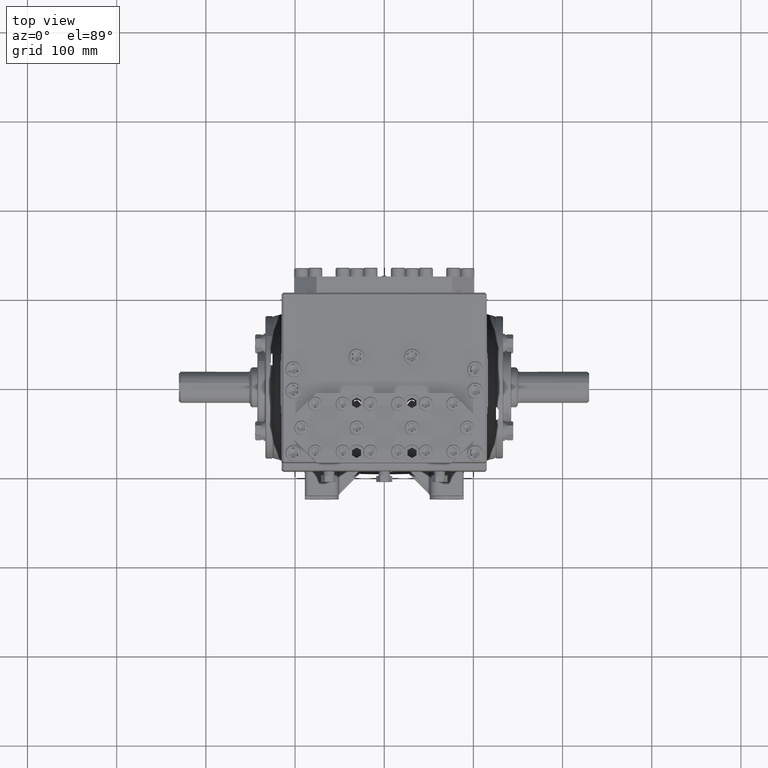
[diagram: clean part render]
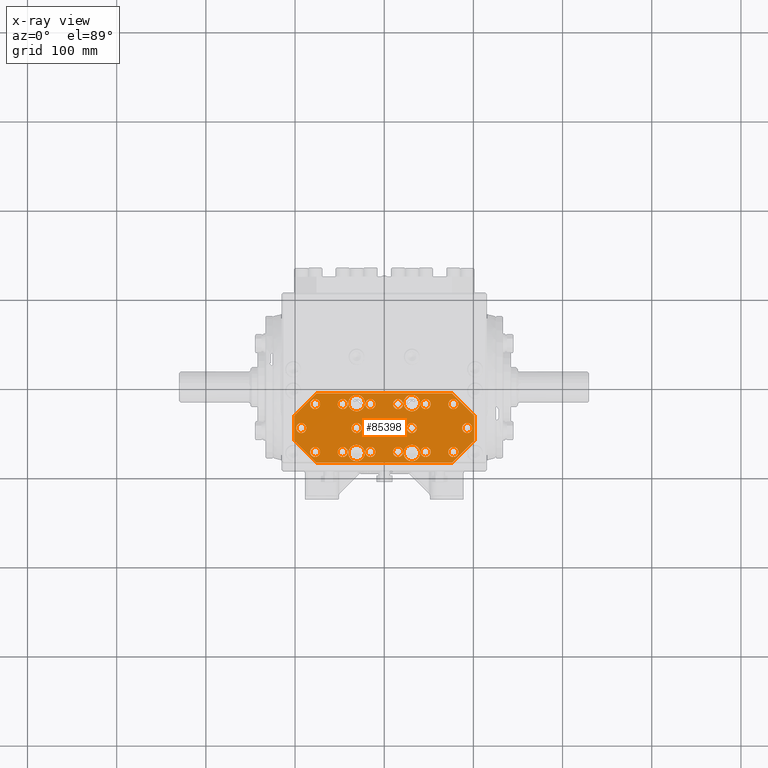
[diagram: x-ray — body ghosted, one internal face saturated and labeled with its STEP entity id]
A machine part, top view, then the same camera in x-ray: the body is ghosted and one INTERNAL B-rep face — a face not visible from any outside direction — is saturated and labeled: STEP entity #85398.
In plain terms, the highlighted planar face has unit normal (-0, -0, 1).
Its self-contained STEP definition (entity closure, byte-faithful):
#291 = EDGE_LOOP ( 'NONE', ( #98568, #105660 ) ) ;
#318 = EDGE_CURVE ( 'NONE', #18968, #102090, #107049, .T. ) ;
#652 = CARTESIAN_POINT ( 'NONE',  ( 1.830708661417328020, -1.069024113491427785, 18.66141732283473331 ) ) ;
#1215 = CIRCLE ( 'NONE', #67926, 0.2204724409448814426 ) ;
#1227 = VERTEX_POINT ( 'NONE', #110384 ) ;
#1425 = CARTESIAN_POINT ( 'NONE',  ( 3.661417322834645827, -2.125984251968503269, 18.66141732283473331 ) ) ;
#1813 = AXIS2_PLACEMENT_3D ( 'NONE', #63108, #99520, #17731 ) ;
#2269 = CARTESIAN_POINT ( 'NONE',  ( 3.051181102362210851, -3.182944390445579419, 18.66141732283473331 ) ) ;
#2303 = DIRECTION ( 'NONE',  ( -1.000000000000000000, -6.195440985631466164E-16, 0.0000000000000000000 ) ) ;
#2445 = FACE_BOUND ( 'NONE', #63827, .T. ) ;
#2452 = ORIENTED_EDGE ( 'NONE', *, *, #102271, .F. ) ;
#2889 = AXIS2_PLACEMENT_3D ( 'NONE', #41051, #79063, #115449 ) ;
#2949 = CARTESIAN_POINT ( 'NONE',  ( -2.830708661417322691, -3.182944390445580751, 18.66141732283473331 ) ) ;
#3020 = CARTESIAN_POINT ( 'NONE',  ( 3.976377952755905554, -0.5905511811023647084, 18.66141732283464805 ) ) ;
#3039 = VERTEX_POINT ( 'NONE', #46148 ) ;
#3328 = CARTESIAN_POINT ( 'NONE',  ( -2.051181102362202413, -1.069024113491437555, 18.66141732283473331 ) ) ;
#3364 = ORIENTED_EDGE ( 'NONE', *, *, #60710, .F. ) ;
#3597 = CARTESIAN_POINT ( 'NONE',  ( -1.440944881889762996, -2.125984251968504601, 18.66141732283473331 ) ) ;
#3681 = ORIENTED_EDGE ( 'NONE', *, *, #68378, .F. ) ;
#3821 = EDGE_LOOP ( 'NONE', ( #102589, #49507 ) ) ;
#4103 = EDGE_CURVE ( 'NONE', #9212, #67387, #11942, .T. ) ;
#4856 = CIRCLE ( 'NONE', #71607, 0.2204724409448814426 ) ;
#5138 = CARTESIAN_POINT ( 'NONE',  ( 0.6102362204724406380, -1.069024113491428007, 18.66141732283473331 ) ) ;
#5158 = ORIENTED_EDGE ( 'NONE', *, *, #76025, .F. ) ;
#5298 = CARTESIAN_POINT ( 'NONE',  ( 3.661417322834645827, -2.125984251968503269, 18.66141732283473331 ) ) ;
#5740 = DIRECTION ( 'NONE',  ( -1.000000000000000000, 0.0000000000000000000, 0.0000000000000000000 ) ) ;
#5843 = CARTESIAN_POINT ( 'NONE',  ( -1.830708661417316030, -3.182944390445580751, 18.66141732283473331 ) ) ;
#5940 = CARTESIAN_POINT ( 'NONE',  ( -3.271653543307085688, -3.182944390445580751, 18.66141732283473331 ) ) ;
#5972 = AXIS2_PLACEMENT_3D ( 'NONE', #88736, #6946, #43382 ) ;
#6135 = EDGE_LOOP ( 'NONE', ( #57706, #2452 ) ) ;
#6275 = CARTESIAN_POINT ( 'NONE',  ( -1.830708661417316030, -3.182944390445580751, 18.66141732283473331 ) ) ;
#6293 = VERTEX_POINT ( 'NONE', #83249 ) ;
#6491 = CARTESIAN_POINT ( 'NONE',  ( -0.6102362204724379735, -1.069024113491437111, 18.66141732283473331 ) ) ;
#6946 = DIRECTION ( 'NONE',  ( 2.748189792635977365E-16, 9.696660653595784599E-17, -1.000000000000000000 ) ) ;
#8325 = EDGE_LOOP ( 'NONE', ( #101899, #73069 ) ) ;
#8526 = CARTESIAN_POINT ( 'NONE',  ( 2.992125984251972959, -3.661417322834651156, 18.66141732283473331 ) ) ;
#8741 = DIRECTION ( 'NONE',  ( 2.748189792635977365E-16, 9.696660653595784599E-17, -1.000000000000000000 ) ) ;
#8765 = EDGE_LOOP ( 'NONE', ( #43735, #47827 ) ) ;
#9212 = VERTEX_POINT ( 'NONE', #3597 ) ;
#9354 = CARTESIAN_POINT ( 'NONE',  ( -3.881889763779525104, -2.125984251968504601, 18.66141732283473331 ) ) ;
#9556 = DIRECTION ( 'NONE',  ( 1.000000000000000000, 4.331330615807356444E-16, 2.748189792635997580E-16 ) ) ;
#9567 = ORIENTED_EDGE ( 'NONE', *, *, #87541, .T. ) ;
#9829 = CARTESIAN_POINT ( 'NONE',  ( -1.220472440944881276, -3.228346456692914757, 18.66141732283473331 ) ) ;
#9862 = AXIS2_PLACEMENT_3D ( 'NONE', #1425, #37871, #74243 ) ;
#10010 = CIRCLE ( 'NONE', #76741, 0.2204724409448816647 ) ;
#10119 = DIRECTION ( 'NONE',  ( 2.748189792635977365E-16, 9.696660653595784599E-17, -1.000000000000000000 ) ) ;
#10662 = CARTESIAN_POINT ( 'NONE',  ( 3.976377952755905998, -2.677165354330708347, 18.66141732283473331 ) ) ;
#10972 = CARTESIAN_POINT ( 'NONE',  ( -3.051181102362204189, -3.182944390445580751, 18.66141732283473331 ) ) ;
#11173 = EDGE_CURVE ( 'NONE', #112759, #81176, #1215, .T. ) ;
#11384 = FACE_BOUND ( 'NONE', #8325, .T. ) ;
#11942 = CIRCLE ( 'NONE', #78691, 0.2204724409448813871 ) ;
#11964 = FACE_BOUND ( 'NONE', #8765, .T. ) ;
#12515 = DIRECTION ( 'NONE',  ( 2.748189792635977365E-16, 9.696660653595784599E-17, -1.000000000000000000 ) ) ;
#12565 = CARTESIAN_POINT ( 'NONE',  ( 0.3897637795275591399, -1.069024113491428229, 18.66141732283473331 ) ) ;
#12649 = DIRECTION ( 'NONE',  ( -1.000000000000000000, 0.0000000000000000000, 0.0000000000000000000 ) ) ;
#12694 = VECTOR ( 'NONE', #95331, 39.37007874015748854 ) ;
#13488 = VERTEX_POINT ( 'NONE', #31716 ) ;
#14392 = CARTESIAN_POINT ( 'NONE',  ( -3.051181102362208630, -1.069024113491437555, 18.66141732283473331 ) ) ;
#14472 = DIRECTION ( 'NONE',  ( 0.7071067811865475727, -0.7071067811865473507, 1.257606188058334877E-16 ) ) ;
#14488 = VERTEX_POINT ( 'NONE', #53954 ) ;
#14632 = CARTESIAN_POINT ( 'NONE',  ( 2.992125984251972959, -3.661417322834651156, 18.66141732283473331 ) ) ;
#14709 = VECTOR ( 'NONE', #9556, 39.37007874015748143 ) ;
#15622 = DIRECTION ( 'NONE',  ( -1.000000000000000000, 0.0000000000000000000, 0.0000000000000000000 ) ) ;
#15741 = CIRCLE ( 'NONE', #82486, 0.2204724409448816647 ) ;
#16581 = DIRECTION ( 'NONE',  ( -1.000000000000000000, -3.762957648539714869E-16, 0.0000000000000000000 ) ) ;
#16881 = CIRCLE ( 'NONE', #83614, 0.2204724409448813871 ) ;
#17253 = DIRECTION ( 'NONE',  ( 2.748189792635977365E-16, 9.696660653595784599E-17, -1.000000000000000000 ) ) ;
#17636 = EDGE_LOOP ( 'NONE', ( #75480, #74321 ) ) ;
#17731 = DIRECTION ( 'NONE',  ( -1.000000000000000000, -3.762957648539714869E-16, 0.0000000000000000000 ) ) ;
#18300 = VERTEX_POINT ( 'NONE', #77907 ) ;
#18531 = CIRCLE ( 'NONE', #85251, 0.3629921259842516790 ) ;
#18535 = EDGE_CURVE ( 'NONE', #61738, #23468, #67648, .T. ) ;
#18968 = VERTEX_POINT ( 'NONE', #87180 ) ;
#19004 = EDGE_LOOP ( 'NONE', ( #35985, #115604 ) ) ;
#19454 = DIRECTION ( 'NONE',  ( -1.000000000000000000, -6.195440985631460248E-16, 0.0000000000000000000 ) ) ;
#20377 = FACE_BOUND ( 'NONE', #105849, .T. ) ;
#20550 = AXIS2_PLACEMENT_3D ( 'NONE', #2269, #38723, #75100 ) ;
#20672 = CARTESIAN_POINT ( 'NONE',  ( -3.976377952755903777, -1.574803149606299746, 18.66141732283473331 ) ) ;
#20737 = DIRECTION ( 'NONE',  ( -1.000000000000000000, 0.0000000000000000000, 0.0000000000000000000 ) ) ;
#20910 = AXIS2_PLACEMENT_3D ( 'NONE', #47670, #84098, #2303 ) ;
#20952 = FACE_BOUND ( 'NONE', #98365, .T. ) ;
#21363 = ORIENTED_EDGE ( 'NONE', *, *, #103146, .F. ) ;
#21676 = CARTESIAN_POINT ( 'NONE',  ( 1.220472440944884163, -1.023622047244093336, 18.66141732283473331 ) ) ;
#22112 = VERTEX_POINT ( 'NONE', #91601 ) ;
#22287 = DIRECTION ( 'NONE',  ( 7.632783294297973402E-17, 1.000000000000000000, 9.696660653595745156E-17 ) ) ;
#22535 = LINE ( 'NONE', #58956, #12694 ) ;
#22713 = AXIS2_PLACEMENT_3D ( 'NONE', #58055, #94440, #12649 ) ;
#22836 = EDGE_CURVE ( 'NONE', #32266, #36820, #86333, .T. ) ;
#22853 = VECTOR ( 'NONE', #14472, 39.37007874015748854 ) ;
#22919 = AXIS2_PLACEMENT_3D ( 'NONE', #99044, #17253, #53692 ) ;
#23468 = VERTEX_POINT ( 'NONE', #20672 ) ;
#23773 = CARTESIAN_POINT ( 'NONE',  ( 1.830708661417324246, -3.182944390445579419, 18.66141732283473331 ) ) ;
#23883 = CIRCLE ( 'NONE', #105814, 0.2204724409448813871 ) ;
#24125 = EDGE_LOOP ( 'NONE', ( #31282, #21363 ) ) ;
#24241 = CIRCLE ( 'NONE', #90949, 0.2204724409448816647 ) ;
#24366 = VERTEX_POINT ( 'NONE', #9354 ) ;
#24781 = DIRECTION ( 'NONE',  ( -1.000000000000000000, 0.0000000000000000000, 0.0000000000000000000 ) ) ;
#24805 = CARTESIAN_POINT ( 'NONE',  ( -3.661417322834643606, -2.125984251968504601, 18.66141732283473331 ) ) ;
#25004 = AXIS2_PLACEMENT_3D ( 'NONE', #32752, #69155, #105530 ) ;
#25441 = EDGE_CURVE ( 'NONE', #24366, #29406, #33354, .T. ) ;
#25443 = DIRECTION ( 'NONE',  ( -1.000000000000000000, 0.0000000000000000000, 0.0000000000000000000 ) ) ;
#25454 = VERTEX_POINT ( 'NONE', #80347 ) ;
#26135 = EDGE_CURVE ( 'NONE', #114500, #13488, #54409, .T. ) ;
#26711 = VERTEX_POINT ( 'NONE', #74096 ) ;
#26997 = VERTEX_POINT ( 'NONE', #5940 ) ;
#27358 = CARTESIAN_POINT ( 'NONE',  ( -0.8574803149606297081, -3.228346456692914757, 18.66141732283473331 ) ) ;
#27441 = CARTESIAN_POINT ( 'NONE',  ( -3.440944881889762108, -2.125984251968504601, 18.66141732283473331 ) ) ;
#27670 = CARTESIAN_POINT ( 'NONE',  ( -2.992125984251970738, -0.5905511811023660407, 18.66141732283473331 ) ) ;
#28342 = VERTEX_POINT ( 'NONE', #94800 ) ;
#28811 = CIRCLE ( 'NONE', #95496, 0.3629921259842516790 ) ;
#28864 = EDGE_CURVE ( 'NONE', #26997, #32384, #107869, .T. ) ;
#28905 = CIRCLE ( 'NONE', #95595, 0.3629921259842516790 ) ;
#29249 = DIRECTION ( 'NONE',  ( 2.748189792635977365E-16, 9.696660653595784599E-17, -1.000000000000000000 ) ) ;
#29327 = FACE_BOUND ( 'NONE', #291, .T. ) ;
#29406 = VERTEX_POINT ( 'NONE', #27441 ) ;
#29484 = DIRECTION ( 'NONE',  ( 2.748189792635977365E-16, 9.696660653595784599E-17, -1.000000000000000000 ) ) ;
#29904 = ORIENTED_EDGE ( 'NONE', *, *, #90614, .F. ) ;
#29919 = FACE_BOUND ( 'NONE', #117555, .T. ) ;
#30153 = ORIENTED_EDGE ( 'NONE', *, *, #4103, .F. ) ;
#30372 = CIRCLE ( 'NONE', #97076, 0.2204724409448814426 ) ;
#30719 = CARTESIAN_POINT ( 'NONE',  ( 3.881889763779527325, -2.125984251968503269, 18.66141732283473331 ) ) ;
#30873 = CARTESIAN_POINT ( 'NONE',  ( -3.271653543307090128, -1.069024113491437555, 18.66141732283473331 ) ) ;
#31159 = DIRECTION ( 'NONE',  ( 2.748189792635977365E-16, 9.696660653595784599E-17, -1.000000000000000000 ) ) ;
#31236 = DIRECTION ( 'NONE',  ( -1.000000000000000000, -6.195440985631468136E-16, 0.0000000000000000000 ) ) ;
#31282 = ORIENTED_EDGE ( 'NONE', *, *, #94576, .F. ) ;
#31459 = AXIS2_PLACEMENT_3D ( 'NONE', #66118, #102513, #20737 ) ;
#31716 = CARTESIAN_POINT ( 'NONE',  ( 0.3897637795275595840, -3.182944390445570981, 18.66141732283473331 ) ) ;
#31930 = VERTEX_POINT ( 'NONE', #62445 ) ;
#32266 = VERTEX_POINT ( 'NONE', #45982 ) ;
#32384 = VERTEX_POINT ( 'NONE', #2949 ) ;
#32536 = LINE ( 'NONE', #68946, #98320 ) ;
#32752 = CARTESIAN_POINT ( 'NONE',  ( 1.830708661417328020, -1.069024113491427785, 18.66141732283473331 ) ) ;
#33070 = CARTESIAN_POINT ( 'NONE',  ( 3.440944881889763884, -2.125984251968503269, 18.66141732283473331 ) ) ;
#33320 = DIRECTION ( 'NONE',  ( 2.748189792635977365E-16, 9.696660653595784599E-17, -1.000000000000000000 ) ) ;
#33354 = CIRCLE ( 'NONE', #100061, 0.2204724409448816647 ) ;
#33364 = CARTESIAN_POINT ( 'NONE',  ( -3.051181102362208630, -1.069024113491437555, 18.66141732283473331 ) ) ;
#33574 = CARTESIAN_POINT ( 'NONE',  ( -1.220472440944881720, -2.125984251968504601, 18.66141732283473331 ) ) ;
#34851 = EDGE_LOOP ( 'NONE', ( #81701, #106062, #9567, #69232, #61303, #110851, #86423, #46056 ) ) ;
#34853 = EDGE_CURVE ( 'NONE', #76525, #74754, #22535, .T. ) ;
#34915 = AXIS2_PLACEMENT_3D ( 'NONE', #33364, #69771, #106141 ) ;
#35045 = VERTEX_POINT ( 'NONE', #112500 ) ;
#35605 = CARTESIAN_POINT ( 'NONE',  ( -1.583464566929132955, -3.228346456692914757, 18.66141732283473331 ) ) ;
#35961 = DIRECTION ( 'NONE',  ( -1.000000000000000000, -6.195440985631466164E-16, 0.0000000000000000000 ) ) ;
#35985 = ORIENTED_EDGE ( 'NONE', *, *, #72950, .F. ) ;
#36596 = EDGE_CURVE ( 'NONE', #88205, #110328, #47324, .T. ) ;
#36820 = VERTEX_POINT ( 'NONE', #30873 ) ;
#37059 = CARTESIAN_POINT ( 'NONE',  ( -1.220472440944881276, -3.228346456692914757, 18.66141732283473331 ) ) ;
#37095 = DIRECTION ( 'NONE',  ( 2.748189792635977365E-16, 9.696660653595784599E-17, -1.000000000000000000 ) ) ;
#37871 = DIRECTION ( 'NONE',  ( 2.748189792635977365E-16, 9.696660653595784599E-17, -1.000000000000000000 ) ) ;
#37894 = VECTOR ( 'NONE', #64083, 39.37007874015748854 ) ;
#38051 = EDGE_CURVE ( 'NONE', #57247, #99859, #47484, .T. ) ;
#38565 = CARTESIAN_POINT ( 'NONE',  ( -1.610236220472439639, -1.069024113491437111, 18.66141732283473331 ) ) ;
#38578 = EDGE_CURVE ( 'NONE', #44649, #51763, #53305, .T. ) ;
#38723 = DIRECTION ( 'NONE',  ( 2.748189792635977365E-16, 9.696660653595784599E-17, -1.000000000000000000 ) ) ;
#38897 = FACE_BOUND ( 'NONE', #88861, .T. ) ;
#39105 = EDGE_CURVE ( 'NONE', #31930, #43449, #59884, .T. ) ;
#39381 = EDGE_LOOP ( 'NONE', ( #50730, #77558 ) ) ;
#39411 = VERTEX_POINT ( 'NONE', #12565 ) ;
#39472 = DIRECTION ( 'NONE',  ( -2.748189792635997580E-16, -9.696660653595784599E-17, 1.000000000000000000 ) ) ;
#40842 = CARTESIAN_POINT ( 'NONE',  ( 1.220472440944884607, -3.228346456692914312, 18.66141732283473331 ) ) ;
#40887 = CIRCLE ( 'NONE', #107569, 0.3629921259842516790 ) ;
#41051 = CARTESIAN_POINT ( 'NONE',  ( 0.6102362204724409711, -3.182944390445570981, 18.66141732283473331 ) ) ;
#41448 = ORIENTED_EDGE ( 'NONE', *, *, #26135, .F. ) ;
#41575 = DIRECTION ( 'NONE',  ( 2.748189792635977365E-16, 9.696660653595784599E-17, -1.000000000000000000 ) ) ;
#41691 = EDGE_LOOP ( 'NONE', ( #100020, #41448 ) ) ;
#41734 = DIRECTION ( 'NONE',  ( 2.748189792635977365E-16, 9.696660653595784599E-17, -1.000000000000000000 ) ) ;
#41782 = CIRCLE ( 'NONE', #108474, 0.2204724409448813871 ) ;
#42300 = DIRECTION ( 'NONE',  ( 2.748189792635977365E-16, 9.696660653595784599E-17, -1.000000000000000000 ) ) ;
#42683 = EDGE_CURVE ( 'NONE', #76044, #46019, #76432, .T. ) ;
#42724 = DIRECTION ( 'NONE',  ( 2.748189792635977365E-16, 9.696660653595784599E-17, -1.000000000000000000 ) ) ;
#42814 = CARTESIAN_POINT ( 'NONE',  ( 1.583464566929136286, -3.228346456692914312, 18.66141732283473331 ) ) ;
#42942 = DIRECTION ( 'NONE',  ( 2.748189792635977365E-16, 9.696660653595784599E-17, -1.000000000000000000 ) ) ;
#43069 = CIRCLE ( 'NONE', #109738, 0.2204724409448814426 ) ;
#43382 = DIRECTION ( 'NONE',  ( -1.000000000000000000, -6.195440985631468136E-16, 0.0000000000000000000 ) ) ;
#43449 = VERTEX_POINT ( 'NONE', #88406 ) ;
#43620 = EDGE_CURVE ( 'NONE', #51763, #44649, #28905, .T. ) ;
#43735 = ORIENTED_EDGE ( 'NONE', *, *, #25441, .F. ) ;
#44240 = CIRCLE ( 'NONE', #110903, 0.2204724409448813871 ) ;
#44649 = VERTEX_POINT ( 'NONE', #90066 ) ;
#44968 = DIRECTION ( 'NONE',  ( -1.000000000000000000, -6.157355327361888385E-16, -2.748189792635998073E-16 ) ) ;
#45182 = DIRECTION ( 'NONE',  ( -1.000000000000000000, 0.0000000000000000000, 0.0000000000000000000 ) ) ;
#45982 = CARTESIAN_POINT ( 'NONE',  ( -2.830708661417327132, -1.069024113491437333, 18.66141732283473331 ) ) ;
#46019 = VERTEX_POINT ( 'NONE', #79065 ) ;
#46056 = ORIENTED_EDGE ( 'NONE', *, *, #39105, .T. ) ;
#46148 = CARTESIAN_POINT ( 'NONE',  ( 2.830708661417324912, -1.069024113491436445, 18.66141732283464449 ) ) ;
#46267 = DIRECTION ( 'NONE',  ( 2.748189792635977365E-16, 9.696660653595784599E-17, -1.000000000000000000 ) ) ;
#46555 = DIRECTION ( 'NONE',  ( -1.000000000000000000, 0.0000000000000000000, 0.0000000000000000000 ) ) ;
#47096 = DIRECTION ( 'NONE',  ( -7.632783294297957378E-17, -1.000000000000000000, -9.696660653595745156E-17 ) ) ;
#47248 = ORIENTED_EDGE ( 'NONE', *, *, #78561, .F. ) ;
#47324 = CIRCLE ( 'NONE', #113989, 0.3629921259842516790 ) ;
#47407 = DIRECTION ( 'NONE',  ( 2.748189792635977365E-16, 9.696660653595784599E-17, -1.000000000000000000 ) ) ;
#47484 = CIRCLE ( 'NONE', #114156, 0.3629921259842516790 ) ;
#47670 = CARTESIAN_POINT ( 'NONE',  ( -0.6102362204724379735, -1.069024113491437111, 18.66141732283473331 ) ) ;
#47811 = FACE_BOUND ( 'NONE', #17636, .T. ) ;
#47827 = ORIENTED_EDGE ( 'NONE', *, *, #111921, .F. ) ;
#48389 = FACE_OUTER_BOUND ( 'NONE', #34851, .T. ) ;
#48954 = DIRECTION ( 'NONE',  ( -1.000000000000000000, 0.0000000000000000000, 0.0000000000000000000 ) ) ;
#49507 = ORIENTED_EDGE ( 'NONE', *, *, #97967, .F. ) ;
#50559 = AXIS2_PLACEMENT_3D ( 'NONE', #14392, #50840, #87250 ) ;
#50730 = ORIENTED_EDGE ( 'NONE', *, *, #57745, .F. ) ;
#50808 = CIRCLE ( 'NONE', #117534, 0.2204724409448816647 ) ;
#50840 = DIRECTION ( 'NONE',  ( 2.748189792635977365E-16, 9.696660653595784599E-17, -1.000000000000000000 ) ) ;
#51126 = CARTESIAN_POINT ( 'NONE',  ( 1.220472440944884385, -2.125984251968504157, 18.66141732283473331 ) ) ;
#51763 = VERTEX_POINT ( 'NONE', #111856 ) ;
#51876 = EDGE_CURVE ( 'NONE', #112812, #94658, #40887, .T. ) ;
#52543 = AXIS2_PLACEMENT_3D ( 'NONE', #6491, #42942, #79344 ) ;
#52872 = CARTESIAN_POINT ( 'NONE',  ( 2.051181102362209518, -1.069024113491427563, 18.66141732283473331 ) ) ;
#53073 = AXIS2_PLACEMENT_3D ( 'NONE', #64843, #101233, #19454 ) ;
#53080 = EDGE_CURVE ( 'NONE', #36820, #32266, #102064, .T. ) ;
#53305 = CIRCLE ( 'NONE', #1813, 0.3629921259842516790 ) ;
#53380 = CIRCLE ( 'NONE', #68603, 0.2204724409448816647 ) ;
#53692 = DIRECTION ( 'NONE',  ( -1.000000000000000000, 0.0000000000000000000, 0.0000000000000000000 ) ) ;
#53954 = CARTESIAN_POINT ( 'NONE',  ( -0.8307086614173194716, -1.069024113491437111, 18.66141732283473331 ) ) ;
#54409 = CIRCLE ( 'NONE', #2889, 0.2204724409448814426 ) ;
#54980 = LINE ( 'NONE', #91358, #14709 ) ;
#55724 = CARTESIAN_POINT ( 'NONE',  ( 0.8307086614173224692, -3.182944390445570981, 18.66141732283473331 ) ) ;
#56451 = AXIS2_PLACEMENT_3D ( 'NONE', #10972, #47407, #83828 ) ;
#56800 = FACE_BOUND ( 'NONE', #24125, .T. ) ;
#57247 = VERTEX_POINT ( 'NONE', #115226 ) ;
#57375 = FACE_BOUND ( 'NONE', #69993, .T. ) ;
#57454 = EDGE_LOOP ( 'NONE', ( #90895, #105377 ) ) ;
#57485 = CIRCLE ( 'NONE', #5972, 0.2204724409448813871 ) ;
#57646 = ORIENTED_EDGE ( 'NONE', *, *, #61193, .F. ) ;
#57706 = ORIENTED_EDGE ( 'NONE', *, *, #83733, .F. ) ;
#57745 = EDGE_CURVE ( 'NONE', #110328, #88205, #18531, .T. ) ;
#57849 = AXIS2_PLACEMENT_3D ( 'NONE', #5843, #42300, #78685 ) ;
#57948 = AXIS2_PLACEMENT_3D ( 'NONE', #6275, #42724, #79114 ) ;
#58055 = CARTESIAN_POINT ( 'NONE',  ( -0.6102362204724376404, -3.182944390445571425, 18.66141732283473331 ) ) ;
#58096 = DIRECTION ( 'NONE',  ( 2.748189792635977365E-16, 9.696660653595784599E-17, -1.000000000000000000 ) ) ;
#58354 = CARTESIAN_POINT ( 'NONE',  ( 3.271653543307092349, -3.182944390445579419, 18.66141732283473331 ) ) ;
#58956 = CARTESIAN_POINT ( 'NONE',  ( 3.976377952755905998, -2.677165354330708347, 18.66141732283473331 ) ) ;
#59089 = EDGE_CURVE ( 'NONE', #3039, #1227, #104474, .T. ) ;
#59884 = LINE ( 'NONE', #96260, #22853 ) ;
#60190 = DIRECTION ( 'NONE',  ( 2.748189792635977365E-16, 9.696660653595784599E-17, -1.000000000000000000 ) ) ;
#60293 = VECTOR ( 'NONE', #47096, 39.37007874015748143 ) ;
#60710 = EDGE_CURVE ( 'NONE', #25454, #39411, #30372, .T. ) ;
#61193 = EDGE_CURVE ( 'NONE', #18300, #14488, #72402, .T. ) ;
#61214 = DIRECTION ( 'NONE',  ( 2.748189792635977365E-16, 9.696660653595784599E-17, -1.000000000000000000 ) ) ;
#61303 = ORIENTED_EDGE ( 'NONE', *, *, #18535, .T. ) ;
#61371 = CIRCLE ( 'NONE', #9862, 0.2204724409448816647 ) ;
#61521 = VERTEX_POINT ( 'NONE', #68408 ) ;
#61738 = VERTEX_POINT ( 'NONE', #65956 ) ;
#61964 = CARTESIAN_POINT ( 'NONE',  ( 1.220472440944884163, -1.023622047244093336, 18.66141732283473331 ) ) ;
#62445 = CARTESIAN_POINT ( 'NONE',  ( 2.992125984251967630, -0.5905511811023649305, 18.66141732283464449 ) ) ;
#63108 = CARTESIAN_POINT ( 'NONE',  ( -1.220472440944881942, -1.023622047244094002, 18.66141732283473331 ) ) ;
#63146 = ORIENTED_EDGE ( 'NONE', *, *, #91051, .F. ) ;
#63549 = CARTESIAN_POINT ( 'NONE',  ( 1.610236220472442747, -3.182944390445579419, 18.66141732283473331 ) ) ;
#63637 = VERTEX_POINT ( 'NONE', #58354 ) ;
#63827 = EDGE_LOOP ( 'NONE', ( #116251, #3681 ) ) ;
#64083 = DIRECTION ( 'NONE',  ( 0.7071067811865472397, 0.7071067811865476838, 2.628921088662792147E-16 ) ) ;
#64588 = EDGE_CURVE ( 'NONE', #1227, #3039, #24241, .T. ) ;
#64843 = CARTESIAN_POINT ( 'NONE',  ( 3.051181102362206410, -1.069024113491436445, 18.66141732283464449 ) ) ;
#65024 = LINE ( 'NONE', #10662, #60293 ) ;
#65409 = ORIENTED_EDGE ( 'NONE', *, *, #104072, .F. ) ;
#65670 = DIRECTION ( 'NONE',  ( -1.000000000000000000, -3.762957648539714869E-16, 0.0000000000000000000 ) ) ;
#65745 = FACE_BOUND ( 'NONE', #3821, .T. ) ;
#65819 = AXIS2_PLACEMENT_3D ( 'NONE', #51126, #87539, #5740 ) ;
#65910 = DIRECTION ( 'NONE',  ( -1.000000000000000000, 0.0000000000000000000, 0.0000000000000000000 ) ) ;
#65956 = CARTESIAN_POINT ( 'NONE',  ( -3.976377952755903777, -2.677165354330710123, 18.66141732283473331 ) ) ;
#66118 = CARTESIAN_POINT ( 'NONE',  ( 1.830708661417324246, -3.182944390445579419, 18.66141732283473331 ) ) ;
#66181 = VERTEX_POINT ( 'NONE', #114795 ) ;
#66333 = FACE_BOUND ( 'NONE', #67707, .T. ) ;
#67214 = EDGE_CURVE ( 'NONE', #46019, #76044, #41782, .T. ) ;
#67387 = VERTEX_POINT ( 'NONE', #85360 ) ;
#67540 = CARTESIAN_POINT ( 'NONE',  ( -0.3897637795275562533, -3.182944390445571425, 18.66141732283473331 ) ) ;
#67566 = DIRECTION ( 'NONE',  ( -1.000000000000000000, 0.0000000000000000000, 0.0000000000000000000 ) ) ;
#67648 = LINE ( 'NONE', #104039, #85751 ) ;
#67707 = EDGE_LOOP ( 'NONE', ( #30153, #29904 ) ) ;
#67926 = AXIS2_PLACEMENT_3D ( 'NONE', #70135, #106495, #24781 ) ;
#68378 = EDGE_CURVE ( 'NONE', #6293, #26711, #16881, .T. ) ;
#68408 = CARTESIAN_POINT ( 'NONE',  ( -1.610236220472434754, -3.182944390445580751, 18.66141732283473331 ) ) ;
#68603 = AXIS2_PLACEMENT_3D ( 'NONE', #90528, #8741, #45182 ) ;
#68946 = CARTESIAN_POINT ( 'NONE',  ( -2.992125984251965409, -3.661417322834643606, 18.66141732283473331 ) ) ;
#69155 = DIRECTION ( 'NONE',  ( 2.748189792635977365E-16, 9.696660653595784599E-17, -1.000000000000000000 ) ) ;
#69232 = ORIENTED_EDGE ( 'NONE', *, *, #107136, .T. ) ;
#69724 = DIRECTION ( 'NONE',  ( -1.000000000000000000, -6.195440985631460248E-16, 0.0000000000000000000 ) ) ;
#69771 = DIRECTION ( 'NONE',  ( 2.748189792635977365E-16, 9.696660653595784599E-17, -1.000000000000000000 ) ) ;
#69993 = EDGE_LOOP ( 'NONE', ( #65409, #5158 ) ) ;
#70135 = CARTESIAN_POINT ( 'NONE',  ( -0.6102362204724376404, -3.182944390445571425, 18.66141732283473331 ) ) ;
#70475 = EDGE_LOOP ( 'NONE', ( #80935, #57646 ) ) ;
#70801 = CARTESIAN_POINT ( 'NONE',  ( -3.661417322834643606, -2.125984251968504601, 18.66141732283473331 ) ) ;
#71607 = AXIS2_PLACEMENT_3D ( 'NONE', #5138, #41575, #77964 ) ;
#72029 = CIRCLE ( 'NONE', #20550, 0.2204724409448816647 ) ;
#72402 = CIRCLE ( 'NONE', #20910, 0.2204724409448814426 ) ;
#72950 = EDGE_CURVE ( 'NONE', #100287, #101511, #61371, .T. ) ;
#73069 = ORIENTED_EDGE ( 'NONE', *, *, #42683, .F. ) ;
#73440 = DIRECTION ( 'NONE',  ( 2.748189792635977365E-16, 9.696660653595784599E-17, -1.000000000000000000 ) ) ;
#73475 = DIRECTION ( 'NONE',  ( -1.000000000000000000, -6.195440985631468136E-16, 0.0000000000000000000 ) ) ;
#74096 = CARTESIAN_POINT ( 'NONE',  ( 1.000000000000002887, -2.125984251968504157, 18.66141732283473331 ) ) ;
#74195 = CIRCLE ( 'NONE', #22713, 0.2204724409448814426 ) ;
#74243 = DIRECTION ( 'NONE',  ( -1.000000000000000000, 0.0000000000000000000, 0.0000000000000000000 ) ) ;
#74321 = ORIENTED_EDGE ( 'NONE', *, *, #318, .F. ) ;
#74394 = CIRCLE ( 'NONE', #22919, 0.3629921259842516790 ) ;
#74754 = VERTEX_POINT ( 'NONE', #14632 ) ;
#75100 = DIRECTION ( 'NONE',  ( -1.000000000000000000, 0.0000000000000000000, 0.0000000000000000000 ) ) ;
#75269 = FACE_BOUND ( 'NONE', #70475, .T. ) ;
#75480 = ORIENTED_EDGE ( 'NONE', *, *, #88339, .F. ) ;
#75849 = DIRECTION ( 'NONE',  ( 1.000000000000000000, 4.787836793695990539E-16, 2.748189792635998073E-16 ) ) ;
#76025 = EDGE_CURVE ( 'NONE', #61521, #28342, #109394, .T. ) ;
#76044 = VERTEX_POINT ( 'NONE', #52872 ) ;
#76432 = CIRCLE ( 'NONE', #25004, 0.2204724409448813871 ) ;
#76525 = VERTEX_POINT ( 'NONE', #110524 ) ;
#76591 = CARTESIAN_POINT ( 'NONE',  ( -1.830708661417320915, -1.069024113491437333, 18.66141732283473331 ) ) ;
#76741 = AXIS2_PLACEMENT_3D ( 'NONE', #111246, #29484, #65910 ) ;
#77217 = DIRECTION ( 'NONE',  ( 2.748189792635977365E-16, 9.696660653595784599E-17, -1.000000000000000000 ) ) ;
#77497 = ORIENTED_EDGE ( 'NONE', *, *, #43620, .F. ) ;
#77558 = ORIENTED_EDGE ( 'NONE', *, *, #36596, .F. ) ;
#77907 = CARTESIAN_POINT ( 'NONE',  ( -0.3897637795275565864, -1.069024113491436889, 18.66141732283473331 ) ) ;
#77964 = DIRECTION ( 'NONE',  ( -1.000000000000000000, -6.195440985631466164E-16, 0.0000000000000000000 ) ) ;
#78126 = DIRECTION ( 'NONE',  ( -1.000000000000000000, 0.0000000000000000000, 0.0000000000000000000 ) ) ;
#78561 = EDGE_CURVE ( 'NONE', #81176, #112759, #74195, .T. ) ;
#78685 = DIRECTION ( 'NONE',  ( -1.000000000000000000, 0.0000000000000000000, 0.0000000000000000000 ) ) ;
#78691 = AXIS2_PLACEMENT_3D ( 'NONE', #33574, #97413, #15622 ) ;
#79063 = DIRECTION ( 'NONE',  ( 2.748189792635977365E-16, 9.696660653595784599E-17, -1.000000000000000000 ) ) ;
#79065 = CARTESIAN_POINT ( 'NONE',  ( 1.610236220472446744, -1.069024113491428007, 18.66141732283473331 ) ) ;
#79114 = DIRECTION ( 'NONE',  ( -1.000000000000000000, 0.0000000000000000000, 0.0000000000000000000 ) ) ;
#79344 = DIRECTION ( 'NONE',  ( -1.000000000000000000, -6.195440985631466164E-16, 0.0000000000000000000 ) ) ;
#80347 = CARTESIAN_POINT ( 'NONE',  ( 0.8307086614173220251, -1.069024113491428007, 18.66141732283473331 ) ) ;
#80919 = ORIENTED_EDGE ( 'NONE', *, *, #38578, .F. ) ;
#80935 = ORIENTED_EDGE ( 'NONE', *, *, #88875, .F. ) ;
#81176 = VERTEX_POINT ( 'NONE', #67540 ) ;
#81320 = CARTESIAN_POINT ( 'NONE',  ( 0.6102362204724406380, -1.069024113491428007, 18.66141732283473331 ) ) ;
#81701 = ORIENTED_EDGE ( 'NONE', *, *, #111383, .T. ) ;
#82486 = AXIS2_PLACEMENT_3D ( 'NONE', #5298, #41734, #78126 ) ;
#82696 = DIRECTION ( 'NONE',  ( -1.000000000000000000, 0.0000000000000000000, 0.0000000000000000000 ) ) ;
#82951 = CIRCLE ( 'NONE', #31459, 0.2204724409448813871 ) ;
#83249 = CARTESIAN_POINT ( 'NONE',  ( 1.440944881889765661, -2.125984251968504157, 18.66141732283473331 ) ) ;
#83407 = CARTESIAN_POINT ( 'NONE',  ( -0.8307086614173190275, -3.182944390445571425, 18.66141732283473331 ) ) ;
#83614 = AXIS2_PLACEMENT_3D ( 'NONE', #94306, #12515, #48954 ) ;
#83733 = EDGE_CURVE ( 'NONE', #102914, #105262, #57485, .T. ) ;
#83828 = DIRECTION ( 'NONE',  ( -1.000000000000000000, 0.0000000000000000000, 0.0000000000000000000 ) ) ;
#84098 = DIRECTION ( 'NONE',  ( 2.748189792635977365E-16, 9.696660653595784599E-17, -1.000000000000000000 ) ) ;
#84239 = FACE_BOUND ( 'NONE', #19004, .T. ) ;
#84814 = PLANE ( 'NONE',  #99656 ) ;
#85251 = AXIS2_PLACEMENT_3D ( 'NONE', #9829, #46267, #82696 ) ;
#85360 = CARTESIAN_POINT ( 'NONE',  ( -1.000000000000000222, -2.125984251968504601, 18.66141732283473331 ) ) ;
#85398 = ADVANCED_FACE ( 'NONE', ( #29327, #65745, #102150, #20377, #56800, #93182, #11384, #47811, #84239, #2445, #38897, #75269, #111660, #29919, #66333, #102721, #20952, #57375, #93759, #11964, #48389 ), #84814, .F. ) ;
#85751 = VECTOR ( 'NONE', #22287, 39.37007874015748143 ) ;
#86333 = CIRCLE ( 'NONE', #34915, 0.2204724409448816647 ) ;
#86423 = ORIENTED_EDGE ( 'NONE', *, *, #93394, .T. ) ;
#87180 = CARTESIAN_POINT ( 'NONE',  ( 2.051181102362205522, -3.182944390445579419, 18.66141732283473331 ) ) ;
#87250 = DIRECTION ( 'NONE',  ( -1.000000000000000000, -6.195440985631460248E-16, 0.0000000000000000000 ) ) ;
#87539 = DIRECTION ( 'NONE',  ( 2.748189792635977365E-16, 9.696660653595784599E-17, -1.000000000000000000 ) ) ;
#87541 = EDGE_CURVE ( 'NONE', #74754, #35045, #90326, .T. ) ;
#88205 = VERTEX_POINT ( 'NONE', #27358 ) ;
#88339 = EDGE_CURVE ( 'NONE', #102090, #18968, #82951, .T. ) ;
#88406 = CARTESIAN_POINT ( 'NONE',  ( 3.976377952755905998, -1.574803149606298192, 18.66141732283464805 ) ) ;
#88529 = EDGE_CURVE ( 'NONE', #26711, #6293, #117268, .T. ) ;
#88736 = CARTESIAN_POINT ( 'NONE',  ( -1.830708661417320915, -1.069024113491437333, 18.66141732283473331 ) ) ;
#88861 = EDGE_LOOP ( 'NONE', ( #63146, #3364 ) ) ;
#88875 = EDGE_CURVE ( 'NONE', #14488, #18300, #103963, .T. ) ;
#90066 = CARTESIAN_POINT ( 'NONE',  ( -1.583464566929133621, -1.023622047244094002, 18.66141732283473331 ) ) ;
#90326 = LINE ( 'NONE', #8526, #115200 ) ;
#90528 = CARTESIAN_POINT ( 'NONE',  ( -3.051181102362204189, -3.182944390445580751, 18.66141732283473331 ) ) ;
#90585 = CARTESIAN_POINT ( 'NONE',  ( 1.583464566929135842, -1.023622047244093336, 18.66141732283473331 ) ) ;
#90614 = EDGE_CURVE ( 'NONE', #67387, #9212, #23883, .T. ) ;
#90895 = ORIENTED_EDGE ( 'NONE', *, *, #59089, .F. ) ;
#90949 = AXIS2_PLACEMENT_3D ( 'NONE', #115055, #33320, #69724 ) ;
#91051 = EDGE_CURVE ( 'NONE', #39411, #25454, #4856, .T. ) ;
#91343 = EDGE_CURVE ( 'NONE', #13488, #114500, #43069, .T. ) ;
#91358 = CARTESIAN_POINT ( 'NONE',  ( 2.992125984251967630, -0.5905511811023649305, 18.66141732283464449 ) ) ;
#91601 = CARTESIAN_POINT ( 'NONE',  ( -2.992125984251970738, -0.5905511811023660407, 18.66141732283473331 ) ) ;
#91819 = AXIS2_PLACEMENT_3D ( 'NONE', #23773, #60190, #96574 ) ;
#91915 = CARTESIAN_POINT ( 'NONE',  ( -1.220472440944881720, -2.125984251968504601, 18.66141732283473331 ) ) ;
#93182 = FACE_BOUND ( 'NONE', #57454, .T. ) ;
#93394 = EDGE_CURVE ( 'NONE', #22112, #31930, #54980, .T. ) ;
#93502 = CARTESIAN_POINT ( 'NONE',  ( 0.8574803149606329278, -3.228346456692914312, 18.66141732283473331 ) ) ;
#93759 = FACE_BOUND ( 'NONE', #108714, .T. ) ;
#94306 = CARTESIAN_POINT ( 'NONE',  ( 1.220472440944884385, -2.125984251968504157, 18.66141732283473331 ) ) ;
#94440 = DIRECTION ( 'NONE',  ( 2.748189792635977365E-16, 9.696660653595784599E-17, -1.000000000000000000 ) ) ;
#94477 = DIRECTION ( 'NONE',  ( -1.000000000000000000, -3.762957648539714869E-16, 0.0000000000000000000 ) ) ;
#94576 = EDGE_CURVE ( 'NONE', #66181, #63637, #72029, .T. ) ;
#94658 = VERTEX_POINT ( 'NONE', #42814 ) ;
#94800 = CARTESIAN_POINT ( 'NONE',  ( -2.051181102362197528, -3.182944390445580751, 18.66141732283473331 ) ) ;
#95331 = DIRECTION ( 'NONE',  ( -0.7071067811865472397, -0.7071067811865476838, -2.628921088662792147E-16 ) ) ;
#95496 = AXIS2_PLACEMENT_3D ( 'NONE', #61964, #98371, #16581 ) ;
#95595 = AXIS2_PLACEMENT_3D ( 'NONE', #110990, #29249, #65670 ) ;
#95975 = ORIENTED_EDGE ( 'NONE', *, *, #28864, .F. ) ;
#96260 = CARTESIAN_POINT ( 'NONE',  ( 3.976377952755905998, -1.574803149606298192, 18.66141732283464805 ) ) ;
#96574 = DIRECTION ( 'NONE',  ( -1.000000000000000000, 0.0000000000000000000, 0.0000000000000000000 ) ) ;
#97076 = AXIS2_PLACEMENT_3D ( 'NONE', #81320, #117702, #35961 ) ;
#97413 = DIRECTION ( 'NONE',  ( 2.748189792635977365E-16, 9.696660653595784599E-17, -1.000000000000000000 ) ) ;
#97615 = DIRECTION ( 'NONE',  ( -1.000000000000000000, 0.0000000000000000000, 0.0000000000000000000 ) ) ;
#97967 = EDGE_CURVE ( 'NONE', #94658, #112812, #74394, .T. ) ;
#98320 = VECTOR ( 'NONE', #105329, 39.37007874015748143 ) ;
#98365 = EDGE_LOOP ( 'NONE', ( #117894, #114207 ) ) ;
#98371 = DIRECTION ( 'NONE',  ( 2.748189792635977365E-16, 9.696660653595784599E-17, -1.000000000000000000 ) ) ;
#98568 = ORIENTED_EDGE ( 'NONE', *, *, #38051, .F. ) ;
#99044 = CARTESIAN_POINT ( 'NONE',  ( 1.220472440944884607, -3.228346456692914312, 18.66141732283473331 ) ) ;
#99072 = EDGE_CURVE ( 'NONE', #99859, #57247, #28811, .T. ) ;
#99520 = DIRECTION ( 'NONE',  ( 2.748189792635977365E-16, 9.696660653595784599E-17, -1.000000000000000000 ) ) ;
#99656 = AXIS2_PLACEMENT_3D ( 'NONE', #3020, #39472, #75849 ) ;
#99859 = VERTEX_POINT ( 'NONE', #90585 ) ;
#100020 = ORIENTED_EDGE ( 'NONE', *, *, #91343, .F. ) ;
#100061 = AXIS2_PLACEMENT_3D ( 'NONE', #70801, #107164, #25443 ) ;
#100287 = VERTEX_POINT ( 'NONE', #33070 ) ;
#101214 = EDGE_CURVE ( 'NONE', #101511, #100287, #15741, .T. ) ;
#101233 = DIRECTION ( 'NONE',  ( 2.748189792635977365E-16, 9.696660653595784599E-17, -1.000000000000000000 ) ) ;
#101511 = VERTEX_POINT ( 'NONE', #30719 ) ;
#101899 = ORIENTED_EDGE ( 'NONE', *, *, #67214, .F. ) ;
#102064 = CIRCLE ( 'NONE', #50559, 0.2204724409448816647 ) ;
#102090 = VERTEX_POINT ( 'NONE', #63549 ) ;
#102150 = FACE_BOUND ( 'NONE', #39381, .T. ) ;
#102271 = EDGE_CURVE ( 'NONE', #105262, #102914, #44240, .T. ) ;
#102513 = DIRECTION ( 'NONE',  ( 2.748189792635977365E-16, 9.696660653595784599E-17, -1.000000000000000000 ) ) ;
#102589 = ORIENTED_EDGE ( 'NONE', *, *, #51876, .F. ) ;
#102721 = FACE_BOUND ( 'NONE', #6135, .T. ) ;
#102914 = VERTEX_POINT ( 'NONE', #3328 ) ;
#103146 = EDGE_CURVE ( 'NONE', #63637, #66181, #10010, .T. ) ;
#103233 = ORIENTED_EDGE ( 'NONE', *, *, #116416, .F. ) ;
#103963 = CIRCLE ( 'NONE', #52543, 0.2204724409448814426 ) ;
#104039 = CARTESIAN_POINT ( 'NONE',  ( -3.976377952755903777, -2.677165354330710123, 18.66141732283473331 ) ) ;
#104072 = EDGE_CURVE ( 'NONE', #28342, #61521, #109287, .T. ) ;
#104474 = CIRCLE ( 'NONE', #53073, 0.2204724409448816647 ) ;
#105040 = ORIENTED_EDGE ( 'NONE', *, *, #11173, .F. ) ;
#105262 = VERTEX_POINT ( 'NONE', #38565 ) ;
#105329 = DIRECTION ( 'NONE',  ( -0.7071067811865473507, 0.7071067811865476838, -1.257606188058329454E-16 ) ) ;
#105377 = ORIENTED_EDGE ( 'NONE', *, *, #64588, .F. ) ;
#105530 = DIRECTION ( 'NONE',  ( -1.000000000000000000, -6.195440985631468136E-16, 0.0000000000000000000 ) ) ;
#105660 = ORIENTED_EDGE ( 'NONE', *, *, #99072, .F. ) ;
#105814 = AXIS2_PLACEMENT_3D ( 'NONE', #91915, #10119, #46555 ) ;
#105849 = EDGE_LOOP ( 'NONE', ( #80919, #77497 ) ) ;
#106062 = ORIENTED_EDGE ( 'NONE', *, *, #34853, .T. ) ;
#106141 = DIRECTION ( 'NONE',  ( -1.000000000000000000, -6.195440985631460248E-16, 0.0000000000000000000 ) ) ;
#106495 = DIRECTION ( 'NONE',  ( 2.748189792635977365E-16, 9.696660653595784599E-17, -1.000000000000000000 ) ) ;
#107049 = CIRCLE ( 'NONE', #91819, 0.2204724409448813871 ) ;
#107136 = EDGE_CURVE ( 'NONE', #35045, #61738, #32536, .T. ) ;
#107164 = DIRECTION ( 'NONE',  ( 2.748189792635977365E-16, 9.696660653595784599E-17, -1.000000000000000000 ) ) ;
#107569 = AXIS2_PLACEMENT_3D ( 'NONE', #40842, #77217, #113601 ) ;
#107869 = CIRCLE ( 'NONE', #56451, 0.2204724409448816647 ) ;
#108474 = AXIS2_PLACEMENT_3D ( 'NONE', #652, #37095, #73475 ) ;
#108714 = EDGE_LOOP ( 'NONE', ( #95975, #103233 ) ) ;
#109287 = CIRCLE ( 'NONE', #57849, 0.2204724409448813871 ) ;
#109394 = CIRCLE ( 'NONE', #57948, 0.2204724409448813871 ) ;
#109417 = LINE ( 'NONE', #27670, #37894 ) ;
#109738 = AXIS2_PLACEMENT_3D ( 'NONE', #112890, #31159, #67566 ) ;
#109819 = DIRECTION ( 'NONE',  ( -1.000000000000000000, 0.0000000000000000000, 0.0000000000000000000 ) ) ;
#110328 = VERTEX_POINT ( 'NONE', #35605 ) ;
#110384 = CARTESIAN_POINT ( 'NONE',  ( 3.271653543307087908, -1.069024113491436223, 18.66141732283464449 ) ) ;
#110524 = CARTESIAN_POINT ( 'NONE',  ( 3.976377952755905998, -2.677165354330708347, 18.66141732283473331 ) ) ;
#110851 = ORIENTED_EDGE ( 'NONE', *, *, #114416, .T. ) ;
#110903 = AXIS2_PLACEMENT_3D ( 'NONE', #76591, #112970, #31236 ) ;
#110990 = CARTESIAN_POINT ( 'NONE',  ( -1.220472440944881942, -1.023622047244094002, 18.66141732283473331 ) ) ;
#111246 = CARTESIAN_POINT ( 'NONE',  ( 3.051181102362210851, -3.182944390445579419, 18.66141732283473331 ) ) ;
#111383 = EDGE_CURVE ( 'NONE', #43449, #76525, #65024, .T. ) ;
#111660 = FACE_BOUND ( 'NONE', #41691, .T. ) ;
#111856 = CARTESIAN_POINT ( 'NONE',  ( -0.8574803149606302632, -1.023622047244093780, 18.66141732283473331 ) ) ;
#111921 = EDGE_CURVE ( 'NONE', #29406, #24366, #50808, .T. ) ;
#112500 = CARTESIAN_POINT ( 'NONE',  ( -2.992125984251965409, -3.661417322834643606, 18.66141732283473331 ) ) ;
#112759 = VERTEX_POINT ( 'NONE', #83407 ) ;
#112812 = VERTEX_POINT ( 'NONE', #93502 ) ;
#112890 = CARTESIAN_POINT ( 'NONE',  ( 0.6102362204724409711, -3.182944390445570981, 18.66141732283473331 ) ) ;
#112970 = DIRECTION ( 'NONE',  ( 2.748189792635977365E-16, 9.696660653595784599E-17, -1.000000000000000000 ) ) ;
#113601 = DIRECTION ( 'NONE',  ( -1.000000000000000000, 0.0000000000000000000, 0.0000000000000000000 ) ) ;
#113989 = AXIS2_PLACEMENT_3D ( 'NONE', #37059, #73440, #109819 ) ;
#114156 = AXIS2_PLACEMENT_3D ( 'NONE', #21676, #58096, #94477 ) ;
#114207 = ORIENTED_EDGE ( 'NONE', *, *, #22836, .F. ) ;
#114416 = EDGE_CURVE ( 'NONE', #23468, #22112, #109417, .T. ) ;
#114500 = VERTEX_POINT ( 'NONE', #55724 ) ;
#114795 = CARTESIAN_POINT ( 'NONE',  ( 2.830708661417329353, -3.182944390445579419, 18.66141732283473331 ) ) ;
#115055 = CARTESIAN_POINT ( 'NONE',  ( 3.051181102362206410, -1.069024113491436445, 18.66141732283464449 ) ) ;
#115200 = VECTOR ( 'NONE', #44968, 39.37007874015748143 ) ;
#115226 = CARTESIAN_POINT ( 'NONE',  ( 0.8574803149606324837, -1.023622047244093558, 18.66141732283473331 ) ) ;
#115449 = DIRECTION ( 'NONE',  ( -1.000000000000000000, 0.0000000000000000000, 0.0000000000000000000 ) ) ;
#115604 = ORIENTED_EDGE ( 'NONE', *, *, #101214, .F. ) ;
#116251 = ORIENTED_EDGE ( 'NONE', *, *, #88529, .F. ) ;
#116416 = EDGE_CURVE ( 'NONE', #32384, #26997, #53380, .T. ) ;
#117268 = CIRCLE ( 'NONE', #65819, 0.2204724409448813871 ) ;
#117534 = AXIS2_PLACEMENT_3D ( 'NONE', #24805, #61214, #97615 ) ;
#117555 = EDGE_LOOP ( 'NONE', ( #105040, #47248 ) ) ;
#117702 = DIRECTION ( 'NONE',  ( 2.748189792635977365E-16, 9.696660653595784599E-17, -1.000000000000000000 ) ) ;
#117894 = ORIENTED_EDGE ( 'NONE', *, *, #53080, .F. ) ;